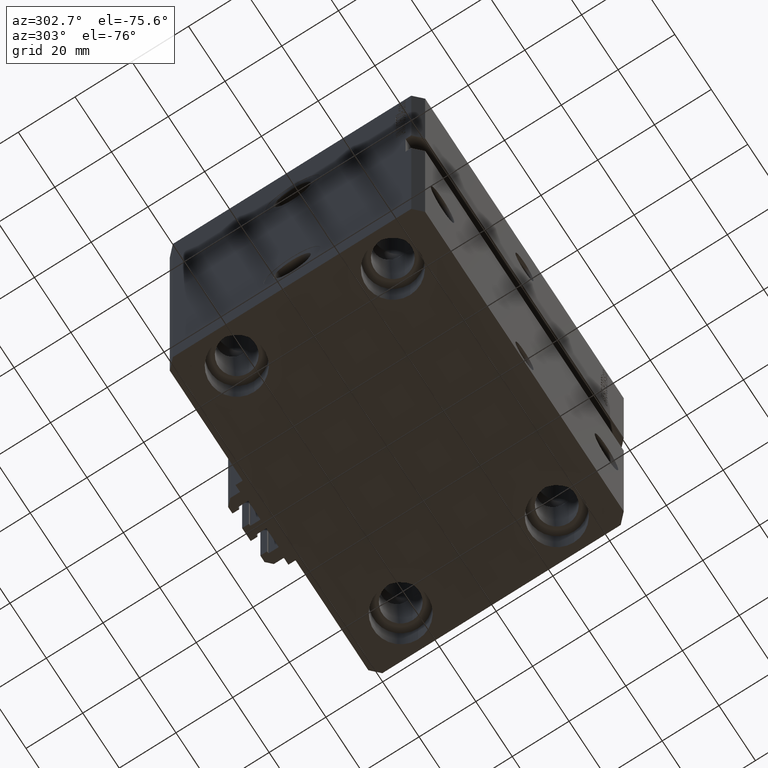
[diagram: clean part render]
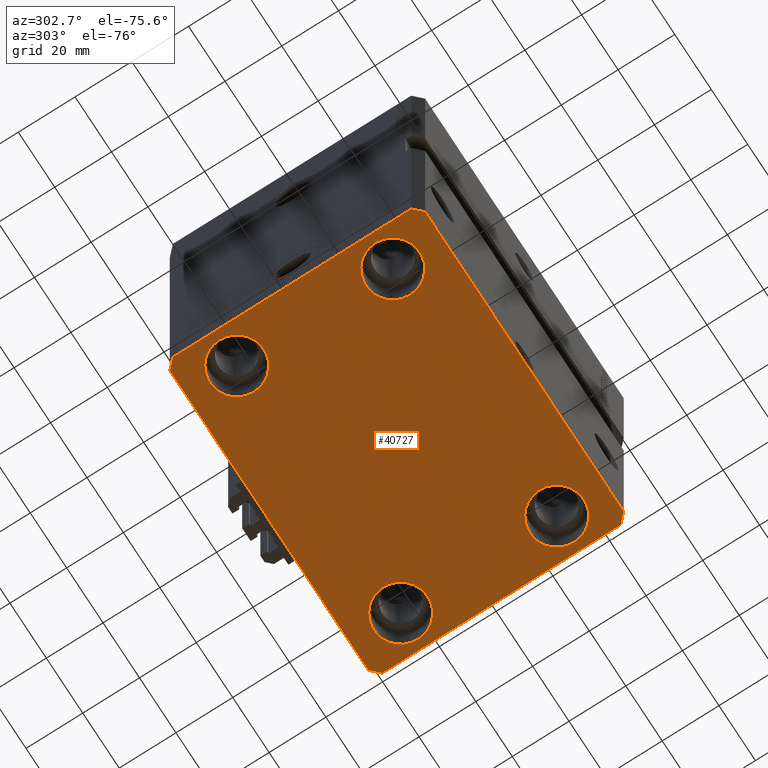
[diagram: same view with one face highlighted and labeled with its STEP entity id]
A machine part, auxiliary view. The second image highlights one B-rep face of the part: STEP entity #40727.
In plain terms, the highlighted planar face has unit normal (0, 0, 1).
Its self-contained STEP definition (entity closure, byte-faithful):
#301 = CIRCLE ( 'NONE', #14755, 9.500000000000001776 ) ;
#339 = CIRCLE ( 'NONE', #37266, 9.500000000000001776 ) ;
#851 = DIRECTION ( 'NONE',  ( -0.000000000000000000, -0.000000000000000000, 1.000000000000000000 ) ) ;
#1760 = CARTESIAN_POINT ( 'NONE',  ( 54.50000000000058975, 45.00000000000002842, -135.0000000000000000 ) ) ;
#1804 = LINE ( 'NONE', #29212, #36733 ) ;
#2099 = CARTESIAN_POINT ( 'NONE',  ( -57.50000000000000711, -42.00000000000000711, -135.0000000000000000 ) ) ;
#2132 = VERTEX_POINT ( 'NONE', #12401 ) ;
#2212 = ORIENTED_EDGE ( 'NONE', *, *, #39606, .T. ) ;
#2229 = EDGE_CURVE ( 'NONE', #38087, #18755, #45203, .T. ) ;
#3332 = PLANE ( 'NONE',  #8519 ) ;
#3912 = EDGE_CURVE ( 'NONE', #45990, #33353, #46720, .T. ) ;
#4526 = DIRECTION ( 'NONE',  ( -0.000000000000000000, -0.000000000000000000, 1.000000000000000000 ) ) ;
#4760 = AXIS2_PLACEMENT_3D ( 'NONE', #42156, #46930, #38884 ) ;
#5695 = CARTESIAN_POINT ( 'NONE',  ( 45.00000000000000000, -27.49999999999999645, -135.0000000000000000 ) ) ;
#5778 = CARTESIAN_POINT ( 'NONE',  ( -54.50000000000000711, -45.00000000000000000, -135.0000000000000000 ) ) ;
#6033 = DIRECTION ( 'NONE',  ( -1.000000000000000000, -2.546383084002639322E-16, 0.000000000000000000 ) ) ;
#6436 = CARTESIAN_POINT ( 'NONE',  ( -57.49999999999998579, 42.00000000000000711, -135.0000000000000000 ) ) ;
#6538 = DIRECTION ( 'NONE',  ( -0.000000000000000000, -0.000000000000000000, 1.000000000000000000 ) ) ;
#7170 = DIRECTION ( 'NONE',  ( 1.000000000000000000, 0.000000000000000000, 0.000000000000000000 ) ) ;
#7303 = CARTESIAN_POINT ( 'NONE',  ( 54.50000000000000711, -44.99999999999998579, -135.0000000000000000 ) ) ;
#7605 = DIRECTION ( 'NONE',  ( 6.443258625056715108E-15, 1.000000000000000000, 0.000000000000000000 ) ) ;
#8081 = EDGE_CURVE ( 'NONE', #18755, #38087, #21235, .T. ) ;
#8415 = VERTEX_POINT ( 'NONE', #2099 ) ;
#8514 = CARTESIAN_POINT ( 'NONE',  ( -54.49999999999999289, 45.00000000000000000, -135.0000000000000000 ) ) ;
#8519 = AXIS2_PLACEMENT_3D ( 'NONE', #33750, #49591, #29744 ) ;
#8870 = ORIENTED_EDGE ( 'NONE', *, *, #16451, .F. ) ;
#8961 = EDGE_LOOP ( 'NONE', ( #35216, #30225 ) ) ;
#9319 = DIRECTION ( 'NONE',  ( 1.000000000000000000, 1.273191542001326317E-16, 0.000000000000000000 ) ) ;
#9351 = VECTOR ( 'NONE', #7605, 1000.000000000000000 ) ;
#9417 = CARTESIAN_POINT ( 'NONE',  ( -35.50000000000000000, 27.50000000000000355, -135.0000000000000000 ) ) ;
#9619 = ORIENTED_EDGE ( 'NONE', *, *, #2229, .T. ) ;
#10202 = AXIS2_PLACEMENT_3D ( 'NONE', #13229, #28582, #26284 ) ;
#10242 = CARTESIAN_POINT ( 'NONE',  ( -35.50000000000000000, -27.49999999999999645, -135.0000000000000000 ) ) ;
#10475 = CARTESIAN_POINT ( 'NONE',  ( -54.50000000000000000, -27.49999999999999645, -135.0000000000000000 ) ) ;
#10688 = ORIENTED_EDGE ( 'NONE', *, *, #25566, .F. ) ;
#10954 = CARTESIAN_POINT ( 'NONE',  ( -45.00000000000000000, -27.49999999999999645, -135.0000000000000000 ) ) ;
#11517 = VERTEX_POINT ( 'NONE', #32788 ) ;
#11916 = DIRECTION ( 'NONE',  ( -0.7071067811865376918, 0.7071067811865574537, 0.000000000000000000 ) ) ;
#12011 = CIRCLE ( 'NONE', #34467, 9.500000000000001776 ) ;
#12401 = CARTESIAN_POINT ( 'NONE',  ( 35.50000000000000000, -27.49999999999999645, -135.0000000000000000 ) ) ;
#12484 = VECTOR ( 'NONE', #6033, 1000.000000000000000 ) ;
#13100 = AXIS2_PLACEMENT_3D ( 'NONE', #36249, #28500, #17400 ) ;
#13142 = ORIENTED_EDGE ( 'NONE', *, *, #14102, .F. ) ;
#13229 = CARTESIAN_POINT ( 'NONE',  ( -45.00000000000000000, 27.50000000000000355, -135.0000000000000000 ) ) ;
#13724 = CARTESIAN_POINT ( 'NONE',  ( 54.50000000000000000, 27.50000000000001776, -135.0000000000000000 ) ) ;
#14019 = VERTEX_POINT ( 'NONE', #7303 ) ;
#14102 = EDGE_CURVE ( 'NONE', #8415, #19180, #26183, .T. ) ;
#14229 = LINE ( 'NONE', #44887, #29938 ) ;
#14755 = AXIS2_PLACEMENT_3D ( 'NONE', #35301, #851, #16191 ) ;
#14851 = DIRECTION ( 'NONE',  ( 0.7071067811865491270, -0.7071067811865459074, 0.000000000000000000 ) ) ;
#16191 = DIRECTION ( 'NONE',  ( 1.000000000000000000, 0.000000000000000000, 0.000000000000000000 ) ) ;
#16451 = EDGE_CURVE ( 'NONE', #33353, #8415, #1804, .T. ) ;
#16573 = VERTEX_POINT ( 'NONE', #30686 ) ;
#17137 = DIRECTION ( 'NONE',  ( -2.478176394252581141E-16, -1.000000000000000000, 0.000000000000000000 ) ) ;
#17257 = DIRECTION ( 'NONE',  ( 1.000000000000000000, 0.000000000000000000, 0.000000000000000000 ) ) ;
#17400 = DIRECTION ( 'NONE',  ( 1.000000000000000000, 0.000000000000000000, 0.000000000000000000 ) ) ;
#17502 = DIRECTION ( 'NONE',  ( -0.000000000000000000, -0.000000000000000000, 1.000000000000000000 ) ) ;
#17844 = VERTEX_POINT ( 'NONE', #19769 ) ;
#18131 = EDGE_CURVE ( 'NONE', #17844, #19656, #30766, .T. ) ;
#18172 = FACE_BOUND ( 'NONE', #21844, .T. ) ;
#18281 = ORIENTED_EDGE ( 'NONE', *, *, #18928, .T. ) ;
#18755 = VERTEX_POINT ( 'NONE', #10242 ) ;
#18928 = EDGE_CURVE ( 'NONE', #11517, #23341, #48107, .T. ) ;
#19180 = VERTEX_POINT ( 'NONE', #40600 ) ;
#19355 = CARTESIAN_POINT ( 'NONE',  ( 45.00000000000000000, -27.49999999999999645, -135.0000000000000000 ) ) ;
#19365 = EDGE_CURVE ( 'NONE', #23341, #11517, #12011, .T. ) ;
#19629 = EDGE_LOOP ( 'NONE', ( #41052, #23312, #27262, #28697, #10688, #13142, #8870, #33463 ) ) ;
#19656 = VERTEX_POINT ( 'NONE', #33390 ) ;
#19769 = CARTESIAN_POINT ( 'NONE',  ( 57.50000000000055422, 41.99999999999997868, -135.0000000000000000 ) ) ;
#21235 = CIRCLE ( 'NONE', #37280, 9.500000000000001776 ) ;
#21415 = VECTOR ( 'NONE', #14851, 1000.000000000000114 ) ;
#21844 = EDGE_LOOP ( 'NONE', ( #9619, #27270 ) ) ;
#22380 = VECTOR ( 'NONE', #11916, 999.9999999999998863 ) ;
#22442 = FACE_BOUND ( 'NONE', #8961, .T. ) ;
#22953 = FACE_BOUND ( 'NONE', #39239, .T. ) ;
#23107 = DIRECTION ( 'NONE',  ( -0.7071067811865483499, -0.7071067811865466846, 0.000000000000000000 ) ) ;
#23312 = ORIENTED_EDGE ( 'NONE', *, *, #18131, .F. ) ;
#23341 = VERTEX_POINT ( 'NONE', #13724 ) ;
#23649 = VERTEX_POINT ( 'NONE', #9417 ) ;
#24239 = CARTESIAN_POINT ( 'NONE',  ( -54.49999999999999289, 45.00000000000000000, -135.0000000000000000 ) ) ;
#25566 = EDGE_CURVE ( 'NONE', #19180, #14019, #36697, .T. ) ;
#26183 = LINE ( 'NONE', #37726, #21415 ) ;
#26284 = DIRECTION ( 'NONE',  ( 1.000000000000000000, 0.000000000000000000, 0.000000000000000000 ) ) ;
#27103 = CIRCLE ( 'NONE', #10202, 9.500000000000001776 ) ;
#27175 = DIRECTION ( 'NONE',  ( 1.000000000000000000, 0.000000000000000000, 0.000000000000000000 ) ) ;
#27226 = CARTESIAN_POINT ( 'NONE',  ( 57.50000000000000711, -41.99999999999998579, -135.0000000000000000 ) ) ;
#27262 = ORIENTED_EDGE ( 'NONE', *, *, #41959, .F. ) ;
#27270 = ORIENTED_EDGE ( 'NONE', *, *, #8081, .T. ) ;
#28500 = DIRECTION ( 'NONE',  ( -0.000000000000000000, -0.000000000000000000, 1.000000000000000000 ) ) ;
#28582 = DIRECTION ( 'NONE',  ( -0.000000000000000000, -0.000000000000000000, 1.000000000000000000 ) ) ;
#28697 = ORIENTED_EDGE ( 'NONE', *, *, #49011, .F. ) ;
#29204 = CARTESIAN_POINT ( 'NONE',  ( -54.50000000000000000, 27.50000000000000355, -135.0000000000000000 ) ) ;
#29212 = CARTESIAN_POINT ( 'NONE',  ( -57.49999999999998579, 42.00000000000000711, -135.0000000000000000 ) ) ;
#29744 = DIRECTION ( 'NONE',  ( 1.000000000000000000, 0.000000000000000000, -0.000000000000000000 ) ) ;
#29938 = VECTOR ( 'NONE', #30065, 1000.000000000000000 ) ;
#30065 = DIRECTION ( 'NONE',  ( 0.7071067811865483499, 0.7071067811865466846, 0.000000000000000000 ) ) ;
#30225 = ORIENTED_EDGE ( 'NONE', *, *, #48395, .T. ) ;
#30493 = VERTEX_POINT ( 'NONE', #32744 ) ;
#30686 = CARTESIAN_POINT ( 'NONE',  ( 57.50000000000000711, -41.99999999999998579, -135.0000000000000000 ) ) ;
#30766 = LINE ( 'NONE', #42337, #22380 ) ;
#32744 = CARTESIAN_POINT ( 'NONE',  ( 54.50000000000000000, -27.49999999999999645, -135.0000000000000000 ) ) ;
#32769 = EDGE_CURVE ( 'NONE', #23649, #49338, #301, .T. ) ;
#32788 = CARTESIAN_POINT ( 'NONE',  ( 35.50000000000000000, 27.50000000000001776, -135.0000000000000000 ) ) ;
#33092 = AXIS2_PLACEMENT_3D ( 'NONE', #5695, #17502, #17257 ) ;
#33353 = VERTEX_POINT ( 'NONE', #6436 ) ;
#33390 = CARTESIAN_POINT ( 'NONE',  ( 54.50000000000058975, 45.00000000000002842, -135.0000000000000000 ) ) ;
#33463 = ORIENTED_EDGE ( 'NONE', *, *, #3912, .F. ) ;
#33512 = FACE_BOUND ( 'NONE', #37501, .T. ) ;
#33696 = CARTESIAN_POINT ( 'NONE',  ( 45.00000000000000000, 27.50000000000001776, -135.0000000000000000 ) ) ;
#33750 = CARTESIAN_POINT ( 'NONE',  ( 0.000000000000000000, 0.000000000000000000, -135.0000000000000000 ) ) ;
#33881 = CIRCLE ( 'NONE', #33092, 9.500000000000001776 ) ;
#34467 = AXIS2_PLACEMENT_3D ( 'NONE', #33696, #6538, #37718 ) ;
#34845 = VECTOR ( 'NONE', #23107, 1000.000000000000000 ) ;
#35115 = EDGE_CURVE ( 'NONE', #19656, #45990, #45422, .T. ) ;
#35216 = ORIENTED_EDGE ( 'NONE', *, *, #43581, .T. ) ;
#35301 = CARTESIAN_POINT ( 'NONE',  ( -45.00000000000000000, 27.50000000000000355, -135.0000000000000000 ) ) ;
#36249 = CARTESIAN_POINT ( 'NONE',  ( -45.00000000000000000, -27.49999999999999645, -135.0000000000000000 ) ) ;
#36697 = LINE ( 'NONE', #5778, #37900 ) ;
#36733 = VECTOR ( 'NONE', #17137, 1000.000000000000000 ) ;
#37266 = AXIS2_PLACEMENT_3D ( 'NONE', #19355, #4526, #27175 ) ;
#37280 = AXIS2_PLACEMENT_3D ( 'NONE', #10954, #41613, #7170 ) ;
#37501 = EDGE_LOOP ( 'NONE', ( #2212, #42079 ) ) ;
#37718 = DIRECTION ( 'NONE',  ( 1.000000000000000000, 0.000000000000000000, 0.000000000000000000 ) ) ;
#37726 = CARTESIAN_POINT ( 'NONE',  ( -57.50000000000000711, -42.00000000000000711, -135.0000000000000000 ) ) ;
#37900 = VECTOR ( 'NONE', #9319, 1000.000000000000000 ) ;
#38087 = VERTEX_POINT ( 'NONE', #10475 ) ;
#38264 = ORIENTED_EDGE ( 'NONE', *, *, #19365, .T. ) ;
#38884 = DIRECTION ( 'NONE',  ( 1.000000000000000000, 0.000000000000000000, 0.000000000000000000 ) ) ;
#39239 = EDGE_LOOP ( 'NONE', ( #18281, #38264 ) ) ;
#39606 = EDGE_CURVE ( 'NONE', #49338, #23649, #27103, .T. ) ;
#40600 = CARTESIAN_POINT ( 'NONE',  ( -54.50000000000000711, -45.00000000000000000, -135.0000000000000000 ) ) ;
#40727 = ADVANCED_FACE ( 'NONE', ( #18172, #22442, #22953, #33512, #49082 ), #3332, .F. ) ;
#41052 = ORIENTED_EDGE ( 'NONE', *, *, #35115, .F. ) ;
#41613 = DIRECTION ( 'NONE',  ( -0.000000000000000000, -0.000000000000000000, 1.000000000000000000 ) ) ;
#41959 = EDGE_CURVE ( 'NONE', #16573, #17844, #45806, .T. ) ;
#42079 = ORIENTED_EDGE ( 'NONE', *, *, #32769, .T. ) ;
#42156 = CARTESIAN_POINT ( 'NONE',  ( 45.00000000000000000, 27.50000000000001776, -135.0000000000000000 ) ) ;
#42337 = CARTESIAN_POINT ( 'NONE',  ( 57.50000000000055422, 41.99999999999997868, -135.0000000000000000 ) ) ;
#43581 = EDGE_CURVE ( 'NONE', #2132, #30493, #33881, .T. ) ;
#44887 = CARTESIAN_POINT ( 'NONE',  ( 54.50000000000000711, -44.99999999999998579, -135.0000000000000000 ) ) ;
#45203 = CIRCLE ( 'NONE', #13100, 9.500000000000001776 ) ;
#45422 = LINE ( 'NONE', #1760, #12484 ) ;
#45806 = LINE ( 'NONE', #27226, #9351 ) ;
#45990 = VERTEX_POINT ( 'NONE', #24239 ) ;
#46720 = LINE ( 'NONE', #8514, #34845 ) ;
#46930 = DIRECTION ( 'NONE',  ( -0.000000000000000000, -0.000000000000000000, 1.000000000000000000 ) ) ;
#48107 = CIRCLE ( 'NONE', #4760, 9.500000000000001776 ) ;
#48395 = EDGE_CURVE ( 'NONE', #30493, #2132, #339, .T. ) ;
#49011 = EDGE_CURVE ( 'NONE', #14019, #16573, #14229, .T. ) ;
#49082 = FACE_OUTER_BOUND ( 'NONE', #19629, .T. ) ;
#49338 = VERTEX_POINT ( 'NONE', #29204 ) ;
#49591 = DIRECTION ( 'NONE',  ( 0.000000000000000000, 0.000000000000000000, 1.000000000000000000 ) ) ;